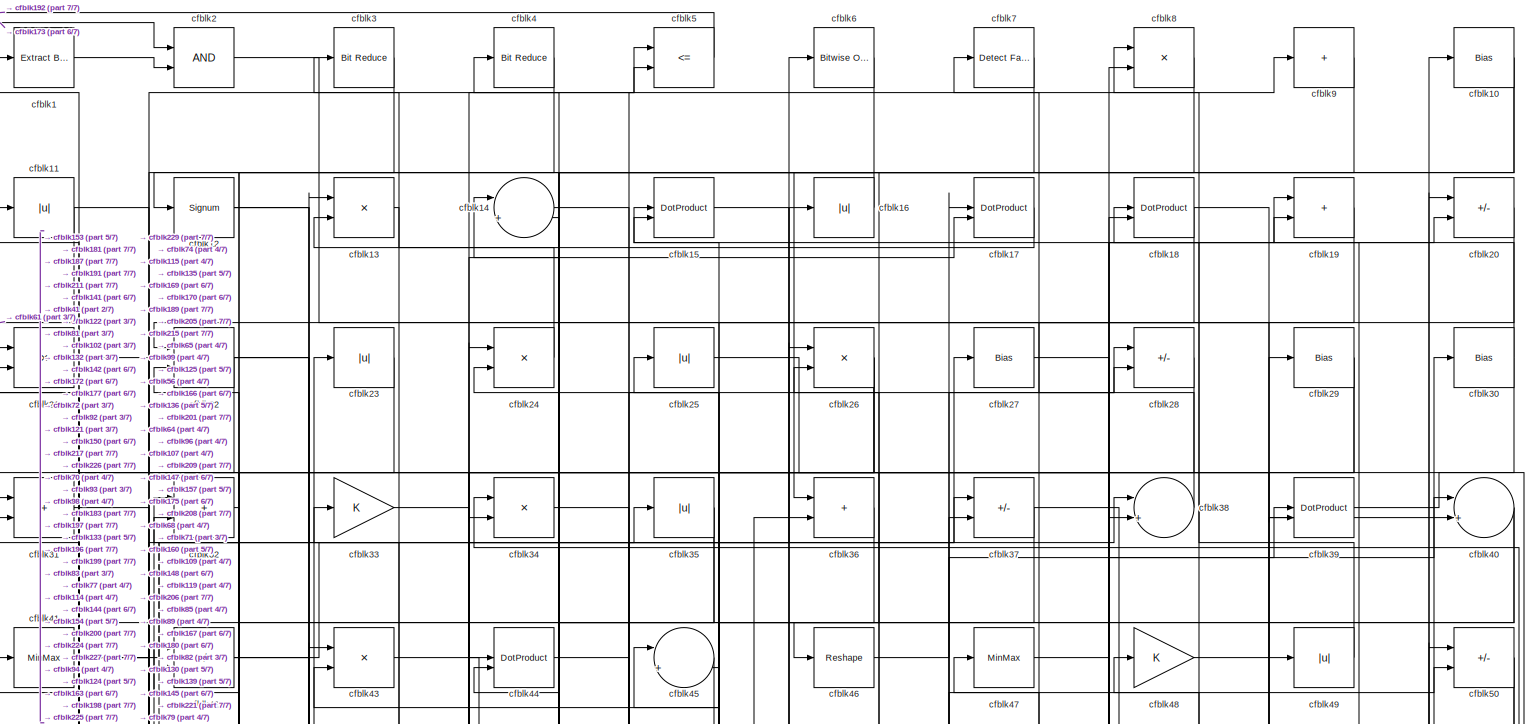
[diagram: root canvas - part 1/7, full width, top band]
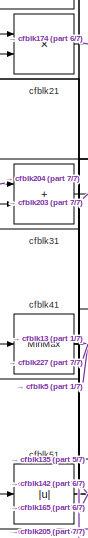
[diagram: root canvas - part 2/7, top left region]
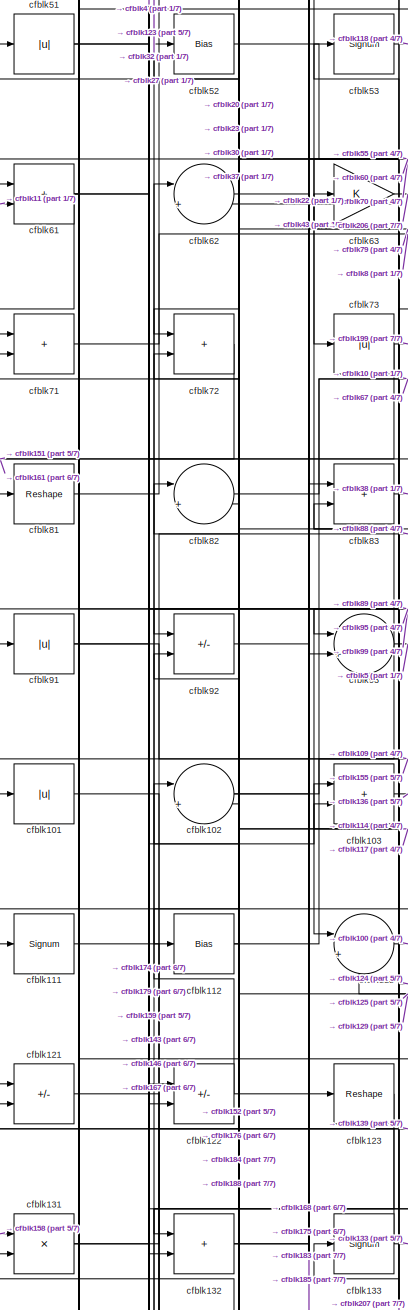
[diagram: root canvas - part 3/7, middle left region]
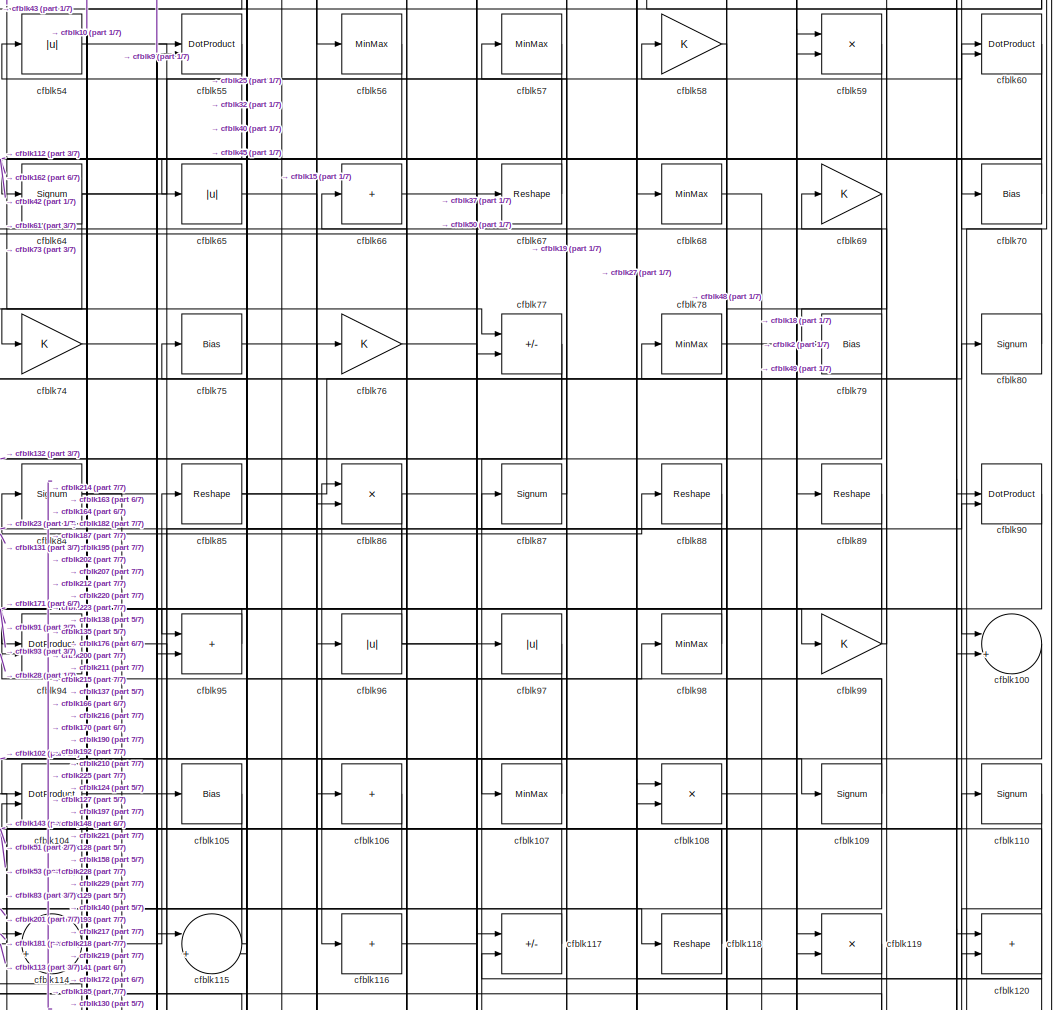
[diagram: root canvas - part 4/7, central region]
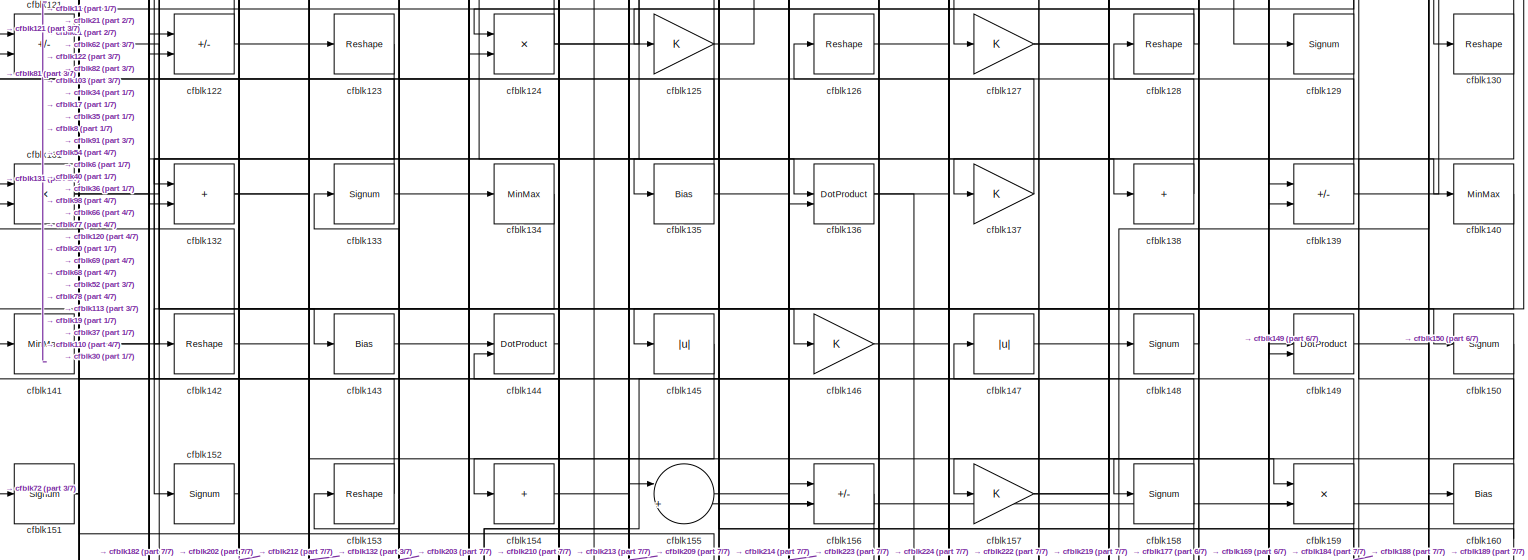
[diagram: root canvas - part 5/7, full width, middle band]
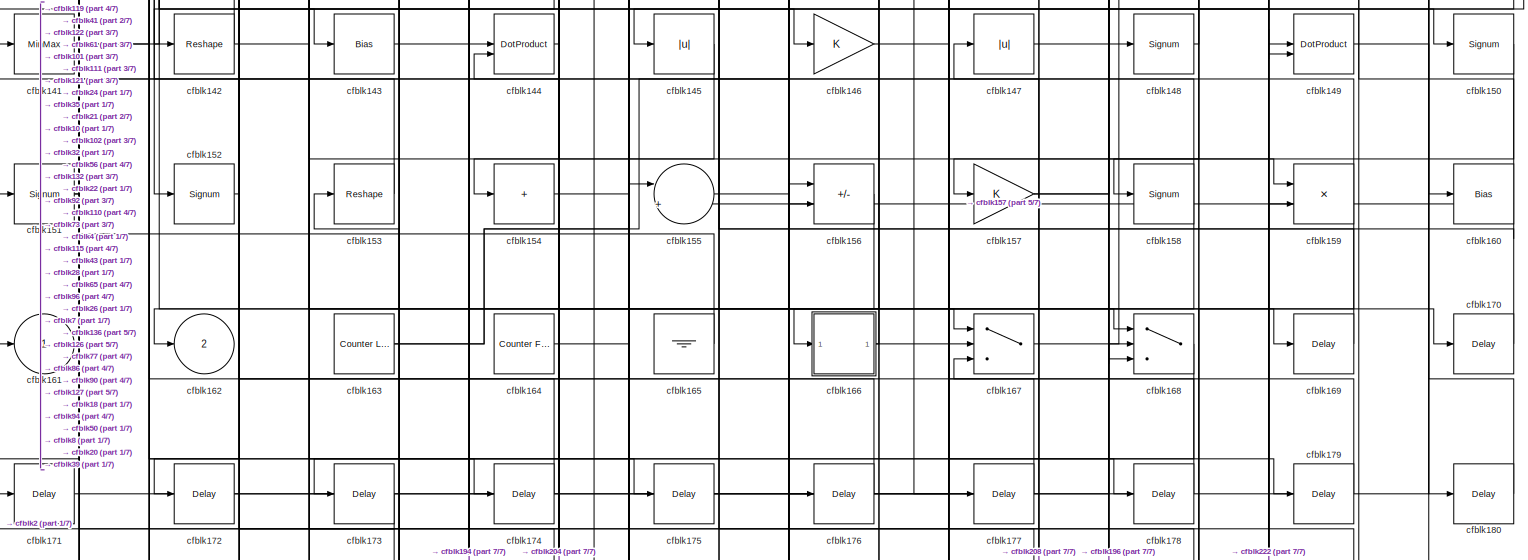
[diagram: root canvas - part 6/7, full width, bottom band]
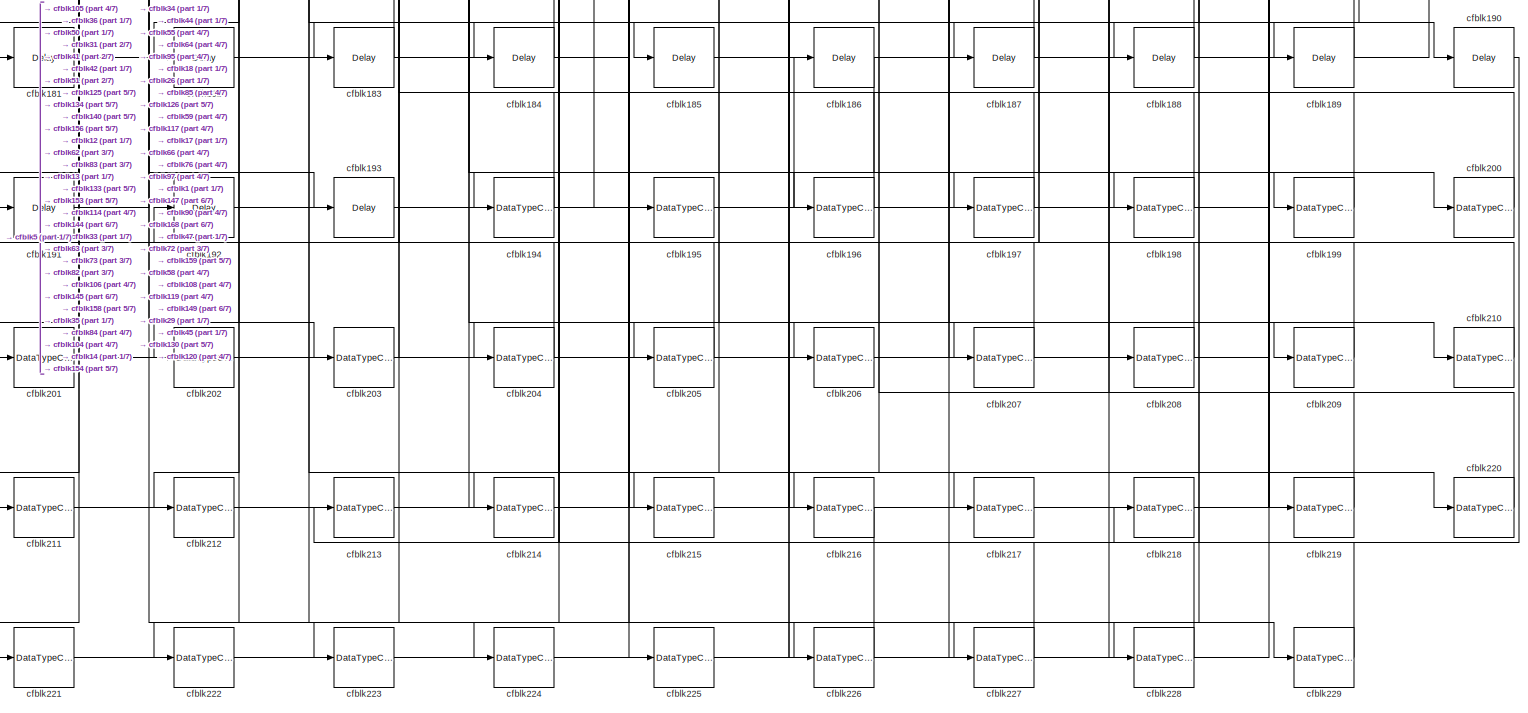
[diagram: root canvas - part 7/7, full width, bottom band]
MODEL slx_8207119f3eb2
KIND model
CONFIG AbsTol = auto
CONFIG EnableMultiTasking = off
CONFIG FixedStep = auto
CONFIG MaxStep = auto
CONFIG MinStep = auto
CONFIG RelTol = 1e-3
CONFIG SampleTimeConstraint = Unconstrained
CONFIG SolverName = VariableStepAuto
CONFIG StartTime = 0.0
CONFIG StopTime = 10.0
BLOCK [Reference] cfblk1  REF=simulink/Logic and Bit
Operations/Extract Bits
  LibrarySourceBlock = hdlsllib/Logic and Bit\nOperations/Extract Bits
  SourceBlock = simulink/Logic and Bit\nOperations/Extract Bits
  SourceType = Extract Bits
BLOCK [Bias] cfblk10
  Bias = 0.0
  SaturateOnIntegerOverflow = off
BLOCK [Sum] cfblk100
  Inputs = |++
BLOCK [Abs] cfblk101
  SaturateOnIntegerOverflow = off
BLOCK [Sum] cfblk102
  Inputs = |++
BLOCK [Sum] cfblk103
  IconShape = rectangular
BLOCK [DotProduct] cfblk104
  OutDataTypeStr = Inherit: Inherit via internal rule
BLOCK [Bias] cfblk105
  Bias = 0.0
  SaturateOnIntegerOverflow = off
BLOCK [Sum] cfblk106
  IconShape = rectangular
  Inputs = +
BLOCK [MinMax] cfblk107
BLOCK [Product] cfblk108
  Inputs = */
  RndMeth = Zero
  SaturateOnIntegerOverflow = on
BLOCK [Signum] cfblk109
BLOCK [Abs] cfblk11
  SaturateOnIntegerOverflow = off
BLOCK [Signum] cfblk110
BLOCK [Signum] cfblk111
BLOCK [Bias] cfblk112
  Bias = 0.0
  SaturateOnIntegerOverflow = off
BLOCK [Sum] cfblk113
  Inputs = |++
BLOCK [Sum] cfblk114
  Inputs = |++
BLOCK [Sum] cfblk115
  Inputs = |++
BLOCK [Sum] cfblk116
  IconShape = rectangular
  Inputs = +
BLOCK [Sum] cfblk117
  IconShape = rectangular
  Inputs = +-
BLOCK [Reshape] cfblk118
BLOCK [Product] cfblk119
  Inputs = */
  RndMeth = Zero
  SaturateOnIntegerOverflow = on
BLOCK [Signum] cfblk12
BLOCK [Sum] cfblk120
  IconShape = rectangular
BLOCK [Sum] cfblk121
  IconShape = rectangular
  Inputs = +-
BLOCK [Sum] cfblk122
  IconShape = rectangular
  Inputs = +-
BLOCK [Reshape] cfblk123
BLOCK [Product] cfblk124
  Inputs = */
  RndMeth = Zero
  SaturateOnIntegerOverflow = on
BLOCK [Gain] cfblk125
BLOCK [Reshape] cfblk126
BLOCK [Gain] cfblk127
BLOCK [Reshape] cfblk128
BLOCK [Signum] cfblk129
BLOCK [Product] cfblk13
  Inputs = */
  RndMeth = Zero
  SaturateOnIntegerOverflow = on
BLOCK [Reshape] cfblk130
BLOCK [Product] cfblk131
  Inputs = */
  RndMeth = Zero
  SaturateOnIntegerOverflow = on
BLOCK [Sum] cfblk132
  IconShape = rectangular
BLOCK [Signum] cfblk133
BLOCK [MinMax] cfblk134
BLOCK [Bias] cfblk135
  Bias = 0.0
  SaturateOnIntegerOverflow = off
BLOCK [DotProduct] cfblk136
  OutDataTypeStr = Inherit: Inherit via internal rule
BLOCK [Gain] cfblk137
BLOCK [Sum] cfblk138
  IconShape = rectangular
  Inputs = +
BLOCK [Sum] cfblk139
  IconShape = rectangular
  Inputs = +-
BLOCK [Sum] cfblk14
  Inputs = |++
BLOCK [MinMax] cfblk140
BLOCK [MinMax] cfblk141
BLOCK [Reshape] cfblk142
BLOCK [Bias] cfblk143
  Bias = 0.0
  SaturateOnIntegerOverflow = off
BLOCK [DotProduct] cfblk144
  OutDataTypeStr = Inherit: Inherit via internal rule
BLOCK [Abs] cfblk145
  SaturateOnIntegerOverflow = off
BLOCK [Gain] cfblk146
BLOCK [Abs] cfblk147
  SaturateOnIntegerOverflow = off
BLOCK [Signum] cfblk148
BLOCK [DotProduct] cfblk149
  OutDataTypeStr = Inherit: Inherit via internal rule
BLOCK [DotProduct] cfblk15
  OutDataTypeStr = Inherit: Inherit via internal rule
BLOCK [Signum] cfblk150
BLOCK [Signum] cfblk151
BLOCK [Signum] cfblk152
BLOCK [Reshape] cfblk153
BLOCK [Sum] cfblk154
  IconShape = rectangular
  Inputs = +
BLOCK [Sum] cfblk155
  Inputs = |++
BLOCK [Sum] cfblk156
  IconShape = rectangular
  Inputs = +-
BLOCK [Gain] cfblk157
BLOCK [Signum] cfblk158
BLOCK [Product] cfblk159
  Inputs = */
  RndMeth = Zero
  SaturateOnIntegerOverflow = on
BLOCK [Abs] cfblk16
  SaturateOnIntegerOverflow = off
BLOCK [Bias] cfblk160
  Bias = 0.0
  SaturateOnIntegerOverflow = off
BLOCK [Outport] cfblk161
  VectorParamsAs1DForOutWhenUnconnected = off
BLOCK [Outport] cfblk162
  Port = 2
  VectorParamsAs1DForOutWhenUnconnected = off
BLOCK [Reference] cfblk163  REF=hdlsllib/Sources/Counter
Limited
  SourceBlock = hdlsllib/Sources/Counter\nLimited
  SourceType = Counter Limited
BLOCK [Reference] cfblk164  REF=hdlsllib/Sources/Counter
Free-Running
  SourceBlock = hdlsllib/Sources/Counter\nFree-Running
  SourceType = Counter Free-Running
BLOCK [Ground] cfblk165
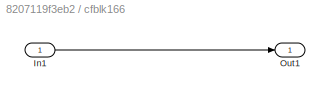
BLOCK [SubSystem] cfblk166
  LibrarySourceBlock = hdlsllib/Ports &\nSubsystems/Subsystem
BLOCK [Inport] cfblk166/In1
BLOCK [Outport] cfblk166/Out1
BLOCK [Switch] cfblk167
  InputSameDT = off
  SaturateOnIntegerOverflow = off
BLOCK [Switch] cfblk168
  InputSameDT = off
  SaturateOnIntegerOverflow = off
BLOCK [Delay] cfblk169
  InputPortMap = u0
  SampleTime = 1
BLOCK [DotProduct] cfblk17
  OutDataTypeStr = Inherit: Inherit via internal rule
BLOCK [Delay] cfblk170
  InputPortMap = u0
  SampleTime = 1
BLOCK [Delay] cfblk171
  InputPortMap = u0
  SampleTime = 1
BLOCK [Delay] cfblk172
  InputPortMap = u0
  SampleTime = 1
BLOCK [Delay] cfblk173
  InputPortMap = u0
  SampleTime = 1
BLOCK [Delay] cfblk174
  InputPortMap = u0
  SampleTime = 1
BLOCK [Delay] cfblk175
  InputPortMap = u0
  SampleTime = 1
BLOCK [Delay] cfblk176
  InputPortMap = u0
  SampleTime = 1
BLOCK [Delay] cfblk177
  InputPortMap = u0
  SampleTime = 1
BLOCK [Delay] cfblk178
  InputPortMap = u0
  SampleTime = 1
BLOCK [Delay] cfblk179
  InputPortMap = u0
  SampleTime = 1
BLOCK [DotProduct] cfblk18
  OutDataTypeStr = Inherit: Inherit via internal rule
BLOCK [Delay] cfblk180
  InputPortMap = u0
  SampleTime = 1
BLOCK [Delay] cfblk181
  InputPortMap = u0
  SampleTime = 1
BLOCK [Delay] cfblk182
  InputPortMap = u0
  SampleTime = 1
BLOCK [Delay] cfblk183
  InputPortMap = u0
  SampleTime = 1
BLOCK [Delay] cfblk184
  InputPortMap = u0
  SampleTime = 1
BLOCK [Delay] cfblk185
  InputPortMap = u0
  SampleTime = 1
BLOCK [Delay] cfblk186
  InputPortMap = u0
  SampleTime = 1
BLOCK [Delay] cfblk187
  InputPortMap = u0
  SampleTime = 1
BLOCK [Delay] cfblk188
  InputPortMap = u0
  SampleTime = 1
BLOCK [Delay] cfblk189
  InputPortMap = u0
  SampleTime = 1
BLOCK [Sum] cfblk19
  IconShape = rectangular
BLOCK [Delay] cfblk190
  InputPortMap = u0
  SampleTime = 1
BLOCK [Delay] cfblk191
  InputPortMap = u0
  SampleTime = 1
BLOCK [Delay] cfblk192
  InputPortMap = u0
  SampleTime = 1
BLOCK [Delay] cfblk193
  InputPortMap = u0
  SampleTime = 1
BLOCK [DataTypeConversion] cfblk194
  OutDataTypeStr = uint8
  RndMeth = Floor
  SaturateOnIntegerOverflow = off
BLOCK [DataTypeConversion] cfblk195
  OutDataTypeStr = uint8
  RndMeth = Floor
  SaturateOnIntegerOverflow = off
BLOCK [DataTypeConversion] cfblk196
  RndMeth = Floor
  SaturateOnIntegerOverflow = off
BLOCK [DataTypeConversion] cfblk197
  OutDataTypeStr = uint8
  RndMeth = Floor
  SaturateOnIntegerOverflow = off
BLOCK [DataTypeConversion] cfblk198
  OutDataTypeStr = uint8
  RndMeth = Floor
  SaturateOnIntegerOverflow = off
BLOCK [DataTypeConversion] cfblk199
  OutDataTypeStr = uint8
  RndMeth = Floor
  SaturateOnIntegerOverflow = off
BLOCK [Logic] cfblk2
  AllPortsSameDT = off
  OutDataTypeStr = boolean
BLOCK [Sum] cfblk20
  IconShape = rectangular
  Inputs = +-
BLOCK [DataTypeConversion] cfblk200
  OutDataTypeStr = uint8
  RndMeth = Floor
  SaturateOnIntegerOverflow = off
BLOCK [DataTypeConversion] cfblk201
  OutDataTypeStr = uint8
  RndMeth = Floor
  SaturateOnIntegerOverflow = off
BLOCK [DataTypeConversion] cfblk202
  OutDataTypeStr = uint8
  RndMeth = Floor
  SaturateOnIntegerOverflow = off
BLOCK [DataTypeConversion] cfblk203
  OutDataTypeStr = uint8
  RndMeth = Floor
  SaturateOnIntegerOverflow = off
BLOCK [DataTypeConversion] cfblk204
  OutDataTypeStr = uint8
  RndMeth = Floor
  SaturateOnIntegerOverflow = off
BLOCK [DataTypeConversion] cfblk205
  OutDataTypeStr = uint8
  RndMeth = Floor
  SaturateOnIntegerOverflow = off
BLOCK [DataTypeConversion] cfblk206
  OutDataTypeStr = uint8
  RndMeth = Floor
  SaturateOnIntegerOverflow = off
BLOCK [DataTypeConversion] cfblk207
  OutDataTypeStr = uint8
  RndMeth = Floor
  SaturateOnIntegerOverflow = off
BLOCK [DataTypeConversion] cfblk208
  OutDataTypeStr = uint8
  RndMeth = Floor
  SaturateOnIntegerOverflow = off
BLOCK [DataTypeConversion] cfblk209
  OutDataTypeStr = uint8
  RndMeth = Floor
  SaturateOnIntegerOverflow = off
BLOCK [Product] cfblk21
  Inputs = */
  RndMeth = Zero
  SaturateOnIntegerOverflow = on
BLOCK [DataTypeConversion] cfblk210
  OutDataTypeStr = uint8
  RndMeth = Floor
  SaturateOnIntegerOverflow = off
BLOCK [DataTypeConversion] cfblk211
  OutDataTypeStr = uint8
  RndMeth = Floor
  SaturateOnIntegerOverflow = off
BLOCK [DataTypeConversion] cfblk212
  OutDataTypeStr = uint8
  RndMeth = Floor
  SaturateOnIntegerOverflow = off
BLOCK [DataTypeConversion] cfblk213
  OutDataTypeStr = uint8
  RndMeth = Floor
  SaturateOnIntegerOverflow = off
BLOCK [DataTypeConversion] cfblk214
  RndMeth = Floor
  SaturateOnIntegerOverflow = off
BLOCK [DataTypeConversion] cfblk215
  OutDataTypeStr = uint8
  RndMeth = Floor
  SaturateOnIntegerOverflow = off
BLOCK [DataTypeConversion] cfblk216
  OutDataTypeStr = uint8
  RndMeth = Floor
  SaturateOnIntegerOverflow = off
BLOCK [DataTypeConversion] cfblk217
  OutDataTypeStr = uint8
  RndMeth = Floor
  SaturateOnIntegerOverflow = off
BLOCK [DataTypeConversion] cfblk218
  OutDataTypeStr = uint8
  RndMeth = Floor
  SaturateOnIntegerOverflow = off
BLOCK [DataTypeConversion] cfblk219
  OutDataTypeStr = uint8
  RndMeth = Floor
  SaturateOnIntegerOverflow = off
BLOCK [Sum] cfblk22
  IconShape = rectangular
BLOCK [DataTypeConversion] cfblk220
  OutDataTypeStr = uint8
  RndMeth = Floor
  SaturateOnIntegerOverflow = off
BLOCK [DataTypeConversion] cfblk221
  OutDataTypeStr = uint8
  RndMeth = Floor
  SaturateOnIntegerOverflow = off
BLOCK [DataTypeConversion] cfblk222
  OutDataTypeStr = uint8
  RndMeth = Floor
  SaturateOnIntegerOverflow = off
BLOCK [DataTypeConversion] cfblk223
  OutDataTypeStr = uint8
  RndMeth = Floor
  SaturateOnIntegerOverflow = off
BLOCK [DataTypeConversion] cfblk224
  OutDataTypeStr = uint8
  RndMeth = Floor
  SaturateOnIntegerOverflow = off
BLOCK [DataTypeConversion] cfblk225
  OutDataTypeStr = uint8
  RndMeth = Floor
  SaturateOnIntegerOverflow = off
BLOCK [DataTypeConversion] cfblk226
  OutDataTypeStr = uint8
  RndMeth = Floor
  SaturateOnIntegerOverflow = off
BLOCK [DataTypeConversion] cfblk227
  OutDataTypeStr = uint8
  RndMeth = Floor
  SaturateOnIntegerOverflow = off
BLOCK [DataTypeConversion] cfblk228
  OutDataTypeStr = uint8
  RndMeth = Floor
  SaturateOnIntegerOverflow = off
BLOCK [DataTypeConversion] cfblk229
  OutDataTypeStr = uint8
  RndMeth = Floor
  SaturateOnIntegerOverflow = off
BLOCK [Abs] cfblk23
  SaturateOnIntegerOverflow = off
BLOCK [Product] cfblk24
  Inputs = */
  RndMeth = Zero
  SaturateOnIntegerOverflow = on
BLOCK [Abs] cfblk25
  SaturateOnIntegerOverflow = off
BLOCK [Product] cfblk26
  Inputs = */
  RndMeth = Zero
  SaturateOnIntegerOverflow = on
BLOCK [Bias] cfblk27
  Bias = 0.0
  SaturateOnIntegerOverflow = off
BLOCK [Sum] cfblk28
  IconShape = rectangular
  Inputs = +-
BLOCK [Bias] cfblk29
  Bias = 0.0
  SaturateOnIntegerOverflow = off
BLOCK [Reference] cfblk3  REF=hdlsllib/Logic and Bit
Operations/Bit Reduce
  SourceBlock = hdlsllib/Logic and Bit\nOperations/Bit Reduce
  SourceType = Bit Reduce
BLOCK [Bias] cfblk30
  Bias = 0.0
  SaturateOnIntegerOverflow = off
BLOCK [Sum] cfblk31
  IconShape = rectangular
BLOCK [Sum] cfblk32
  IconShape = rectangular
BLOCK [Gain] cfblk33
BLOCK [Product] cfblk34
  Inputs = */
  RndMeth = Zero
  SaturateOnIntegerOverflow = on
BLOCK [Abs] cfblk35
  SaturateOnIntegerOverflow = off
BLOCK [Sum] cfblk36
  IconShape = rectangular
BLOCK [Sum] cfblk37
  IconShape = rectangular
  Inputs = +-
BLOCK [Sum] cfblk38
  Inputs = |++
BLOCK [DotProduct] cfblk39
  OutDataTypeStr = Inherit: Inherit via internal rule
BLOCK [Reference] cfblk4  REF=hdlsllib/Logic and Bit
Operations/Bit Reduce
  SourceBlock = hdlsllib/Logic and Bit\nOperations/Bit Reduce
  SourceType = Bit Reduce
BLOCK [Sum] cfblk40
  Inputs = |++
BLOCK [MinMax] cfblk41
BLOCK [Sum] cfblk42
  IconShape = rectangular
  Inputs = +-
BLOCK [Product] cfblk43
  Inputs = */
  RndMeth = Zero
  SaturateOnIntegerOverflow = on
BLOCK [DotProduct] cfblk44
  OutDataTypeStr = Inherit: Inherit via internal rule
BLOCK [Sum] cfblk45
  Inputs = |++
BLOCK [Reshape] cfblk46
BLOCK [MinMax] cfblk47
BLOCK [Gain] cfblk48
BLOCK [Abs] cfblk49
  SaturateOnIntegerOverflow = off
BLOCK [RelationalOperator] cfblk5
  InputSameDT = off
  Operator = <=
  OutDataTypeStr = boolean
BLOCK [Sum] cfblk50
  IconShape = rectangular
  Inputs = +-
BLOCK [Abs] cfblk51
  SaturateOnIntegerOverflow = off
BLOCK [Bias] cfblk52
  Bias = 0.0
  SaturateOnIntegerOverflow = off
BLOCK [Signum] cfblk53
BLOCK [Abs] cfblk54
  SaturateOnIntegerOverflow = off
BLOCK [DotProduct] cfblk55
  OutDataTypeStr = Inherit: Inherit via internal rule
BLOCK [MinMax] cfblk56
BLOCK [MinMax] cfblk57
BLOCK [Gain] cfblk58
BLOCK [Product] cfblk59
  Inputs = */
  RndMeth = Zero
  SaturateOnIntegerOverflow = on
BLOCK [Reference] cfblk6  REF=simulink/Logic and Bit
Operations/Bitwise
Operator
  LibrarySourceBlock = hdlsllib/Logic and Bit\nOperations/Bitwise\nOperator
  SourceBlock = simulink/Logic and Bit\nOperations/Bitwise\nOperator
  SourceType = Bitwise Operator
BLOCK [DotProduct] cfblk60
  OutDataTypeStr = Inherit: Inherit via internal rule
BLOCK [Sum] cfblk61
  IconShape = rectangular
BLOCK [Sum] cfblk62
  Inputs = |++
BLOCK [Gain] cfblk63
BLOCK [Signum] cfblk64
BLOCK [Abs] cfblk65
  SaturateOnIntegerOverflow = off
BLOCK [Sum] cfblk66
  IconShape = rectangular
  Inputs = +
BLOCK [Reshape] cfblk67
BLOCK [MinMax] cfblk68
BLOCK [Gain] cfblk69
BLOCK [Reference] cfblk7  REF=hdlsllib/Logic and Bit
Operations/Detect Fall
Nonpositive
  SourceBlock = hdlsllib/Logic and Bit\nOperations/Detect Fall\nNonpositive
  SourceType = Detect Fall Nonpositive
BLOCK [Bias] cfblk70
  Bias = 0.0
  SaturateOnIntegerOverflow = off
BLOCK [Sum] cfblk71
  IconShape = rectangular
BLOCK [Sum] cfblk72
  IconShape = rectangular
BLOCK [Abs] cfblk73
  SaturateOnIntegerOverflow = off
BLOCK [Gain] cfblk74
BLOCK [Bias] cfblk75
  Bias = 0.0
  SaturateOnIntegerOverflow = off
BLOCK [Gain] cfblk76
BLOCK [Sum] cfblk77
  IconShape = rectangular
  Inputs = +-
BLOCK [MinMax] cfblk78
BLOCK [Bias] cfblk79
  Bias = 0.0
  SaturateOnIntegerOverflow = off
BLOCK [Product] cfblk8
  Inputs = */
  RndMeth = Zero
  SaturateOnIntegerOverflow = on
BLOCK [Signum] cfblk80
BLOCK [Reshape] cfblk81
BLOCK [Sum] cfblk82
  Inputs = |++
BLOCK [Sum] cfblk83
  IconShape = rectangular
BLOCK [Signum] cfblk84
BLOCK [Reshape] cfblk85
BLOCK [Product] cfblk86
  Inputs = */
  RndMeth = Zero
  SaturateOnIntegerOverflow = on
BLOCK [Signum] cfblk87
BLOCK [Reshape] cfblk88
BLOCK [Reshape] cfblk89
BLOCK [Sum] cfblk9
  IconShape = rectangular
  Inputs = +
BLOCK [DotProduct] cfblk90
  OutDataTypeStr = Inherit: Inherit via internal rule
BLOCK [Abs] cfblk91
  SaturateOnIntegerOverflow = off
BLOCK [Sum] cfblk92
  IconShape = rectangular
  Inputs = +-
BLOCK [Sum] cfblk93
  Inputs = |++
BLOCK [DotProduct] cfblk94
  OutDataTypeStr = Inherit: Inherit via internal rule
BLOCK [Sum] cfblk95
  IconShape = rectangular
BLOCK [Abs] cfblk96
  SaturateOnIntegerOverflow = off
BLOCK [Abs] cfblk97
  SaturateOnIntegerOverflow = off
BLOCK [MinMax] cfblk98
BLOCK [Gain] cfblk99
LINE cfblk100:1 -> cfblk116:1
LINE cfblk101:1 -> cfblk167:1
NET cfblk102:1 -> cfblk109:1, cfblk43:1
LINE cfblk103:1 -> cfblk136:1
LINE cfblk104:1 -> cfblk220:1
LINE cfblk105:1 -> cfblk201:1
LINE cfblk106:1 -> cfblk214:1
LINE cfblk107:1 -> cfblk84:1
LINE cfblk108:1 -> cfblk219:1
NET cfblk109:1 -> cfblk115:2, cfblk15:2, cfblk48:1
NET cfblk10:1 -> cfblk114:2, cfblk142:1
LINE cfblk110:1 -> cfblk130:1
LINE cfblk111:1 -> cfblk146:1
NET cfblk112:1 -> cfblk67:1, cfblk92:2
LINE cfblk113:1 -> cfblk100:2
NET cfblk114:1 -> cfblk53:1, cfblk85:1
NET cfblk115:1 -> cfblk25:1, cfblk32:2
LINE cfblk116:1 -> cfblk80:1
LINE cfblk117:1 -> cfblk83:2
NET cfblk118:1 -> cfblk51:1, cfblk87:1
LINE cfblk119:1 -> cfblk141:1
NET cfblk11:1 -> cfblk39:2, cfblk61:2
NET cfblk120:1 -> cfblk117:2, cfblk86:1
LINE cfblk121:1 -> cfblk143:1
NET cfblk122:1 -> cfblk123:1, cfblk32:1
LINE cfblk123:1 -> cfblk152:1
NET cfblk124:1 -> cfblk37:1, cfblk62:2, cfblk6:1
NET cfblk125:1 -> cfblk182:1, cfblk36:2, cfblk52:1
LINE cfblk126:1 -> cfblk149:2
NET cfblk127:1 -> cfblk120:2, cfblk169:1
NET cfblk128:1 -> cfblk125:1, cfblk78:1
NET cfblk129:1 -> cfblk113:2, cfblk137:1
NET cfblk12:1 -> cfblk217:1, cfblk226:1
NET cfblk130:1 -> cfblk189:1, cfblk30:1
NET cfblk131:1 -> cfblk103:1, cfblk88:1
NET cfblk132:1 -> cfblk159:1, cfblk168:3
NET cfblk133:1 -> cfblk17:2, cfblk81:1
LINE cfblk134:1 -> cfblk212:1
NET cfblk135:1 -> cfblk21:1, cfblk98:1
NET cfblk136:1 -> cfblk177:1, cfblk40:1
LINE cfblk137:1 -> cfblk66:1
LINE cfblk138:1 -> cfblk128:1
NET cfblk139:1 -> cfblk103:2, cfblk34:1
LINE cfblk13:1 -> cfblk183:1
LINE cfblk140:1 -> cfblk202:1
NET cfblk141:1 -> cfblk24:1, cfblk35:1
NET cfblk142:1 -> cfblk168:1, cfblk21:2
LINE cfblk143:1 -> cfblk110:1
LINE cfblk144:1 -> cfblk4:1
LINE cfblk145:1 -> cfblk204:1
LINE cfblk146:1 -> cfblk178:1
LINE cfblk147:1 -> cfblk39:1
LINE cfblk148:1 -> cfblk8:1
LINE cfblk149:1 -> cfblk180:1
LINE cfblk14:1 -> cfblk225:1
LINE cfblk150:1 -> cfblk157:1
NET cfblk151:1 -> cfblk121:1, cfblk131:2
LINE cfblk152:1 -> cfblk82:1
LINE cfblk153:1 -> cfblk11:1
LINE cfblk154:1 -> cfblk209:1
LINE cfblk155:1 -> cfblk136:2
LINE cfblk156:1 -> cfblk222:1
NET cfblk157:1 -> cfblk19:2, cfblk20:2
NET cfblk158:1 -> cfblk131:1, cfblk184:1
NET cfblk159:1 -> cfblk188:1, cfblk62:1
LINE cfblk15:1 -> cfblk56:1
NET cfblk160:1 -> cfblk155:2, cfblk19:1
NET cfblk163:1 -> cfblk28:2, cfblk96:1
LINE cfblk164:1 -> cfblk115:1
LINE cfblk165:1 -> cfblk41:1
LINE cfblk166/In1:1 -> cfblk166/Out1:1
NET cfblk166:1 -> cfblk26:2, cfblk90:2
LINE cfblk167:1 -> cfblk50:1
LINE cfblk168:1 -> cfblk173:1
LINE cfblk169:1 -> cfblk43:2
LINE cfblk16:1 -> cfblk12:1
LINE cfblk170:1 -> cfblk24:2
LINE cfblk171:1 -> cfblk77:2
LINE cfblk172:1 -> cfblk90:1
LINE cfblk173:1 -> cfblk2:1
LINE cfblk174:1 -> cfblk122:1
LINE cfblk175:1 -> cfblk18:2
LINE cfblk176:1 -> cfblk102:1
LINE cfblk177:1 -> cfblk22:2
LINE cfblk178:1 -> cfblk167:2
LINE cfblk179:1 -> cfblk167:3
LINE cfblk17:1 -> cfblk13:2
LINE cfblk180:1 -> cfblk20:1
LINE cfblk181:1 -> cfblk114:1
LINE cfblk182:1 -> cfblk95:2
LINE cfblk183:1 -> cfblk83:1
LINE cfblk184:1 -> cfblk82:2
LINE cfblk185:1 -> cfblk120:1
LINE cfblk186:1 -> cfblk194:1
LINE cfblk187:1 -> cfblk1:1
LINE cfblk188:1 -> cfblk72:2
LINE cfblk189:1 -> cfblk45:1
NET cfblk18:1 -> cfblk215:1, cfblk89:1
LINE cfblk190:1 -> cfblk218:1
LINE cfblk191:1 -> cfblk42:2
LINE cfblk192:1 -> cfblk117:1
LINE cfblk193:1 -> cfblk119:2
LINE cfblk194:1 -> cfblk144:1
LINE cfblk195:1 -> cfblk186:1
NET cfblk196:1 -> cfblk144:2, cfblk168:2
LINE cfblk197:1 -> cfblk33:1
LINE cfblk198:1 -> cfblk26:1
LINE cfblk199:1 -> cfblk44:1
LINE cfblk19:1 -> cfblk107:1
LINE cfblk1:1 -> cfblk2:2
LINE cfblk200:1 -> cfblk44:2
LINE cfblk201:1 -> cfblk17:1
LINE cfblk202:1 -> cfblk105:1
LINE cfblk203:1 -> cfblk133:1
LINE cfblk204:1 -> cfblk31:1
LINE cfblk205:1 -> cfblk31:2
LINE cfblk206:1 -> cfblk29:1
LINE cfblk207:1 -> cfblk63:1
LINE cfblk208:1 -> cfblk147:1
LINE cfblk209:1 -> cfblk47:1
LINE cfblk20:1 -> cfblk102:2
LINE cfblk210:1 -> cfblk153:1
LINE cfblk211:1 -> cfblk76:1
LINE cfblk212:1 -> cfblk55:1
LINE cfblk213:1 -> cfblk134:1
NET cfblk214:1 -> cfblk159:2, cfblk55:2
LINE cfblk215:1 -> cfblk106:1
LINE cfblk216:1 -> cfblk213:1
LINE cfblk217:1 -> cfblk59:1
LINE cfblk218:1 -> cfblk59:2
LINE cfblk219:1 -> cfblk126:1
LINE cfblk21:1 -> cfblk174:1
LINE cfblk220:1 -> cfblk108:1
LINE cfblk221:1 -> cfblk108:2
LINE cfblk222:1 -> cfblk149:1
LINE cfblk223:1 -> cfblk156:1
LINE cfblk224:1 -> cfblk156:2
LINE cfblk225:1 -> cfblk97:1
LINE cfblk226:1 -> cfblk14:1
LINE cfblk227:1 -> cfblk14:2
LINE cfblk228:1 -> cfblk104:2
LINE cfblk229:1 -> cfblk58:1
NET cfblk22:1 -> cfblk121:2, cfblk150:1, cfblk93:2
LINE cfblk23:1 -> cfblk92:1
LINE cfblk24:1 -> cfblk3:1
LINE cfblk25:1 -> cfblk38:2
NET cfblk26:1 -> cfblk191:1, cfblk205:1, cfblk211:1
LINE cfblk27:1 -> cfblk68:1
LINE cfblk28:1 -> cfblk94:2
NET cfblk29:1 -> cfblk34:2, cfblk46:1
LINE cfblk2:1 -> cfblk119:1
NET cfblk30:1 -> cfblk132:1, cfblk15:1
LINE cfblk31:1 -> cfblk203:1
LINE cfblk32:1 -> cfblk172:1
LINE cfblk33:1 -> cfblk196:1
LINE cfblk34:1 -> cfblk229:1
NET cfblk35:1 -> cfblk154:1, cfblk224:1
LINE cfblk36:1 -> cfblk181:1
NET cfblk37:1 -> cfblk160:1, cfblk72:1
LINE cfblk38:1 -> cfblk7:1
LINE cfblk39:1 -> cfblk145:1
LINE cfblk3:1 -> cfblk22:1
NET cfblk40:1 -> cfblk135:1, cfblk65:1
NET cfblk41:1 -> cfblk13:1, cfblk227:1, cfblk5:2
NET cfblk42:1 -> cfblk16:1, cfblk70:1
LINE cfblk43:1 -> cfblk77:1
LINE cfblk44:1 -> cfblk198:1
LINE cfblk45:1 -> cfblk74:1
LINE cfblk46:1 -> cfblk28:1
LINE cfblk47:1 -> cfblk208:1
LINE cfblk48:1 -> cfblk40:2
LINE cfblk49:1 -> cfblk18:1
LINE cfblk4:1 -> cfblk122:2
NET cfblk50:1 -> cfblk221:1, cfblk79:1
NET cfblk51:1 -> cfblk139:2, cfblk193:1
LINE cfblk52:1 -> cfblk139:1
LINE cfblk53:1 -> cfblk118:1
LINE cfblk54:1 -> cfblk138:1
LINE cfblk55:1 -> cfblk73:1
LINE cfblk56:1 -> cfblk162:1
LINE cfblk57:1 -> cfblk64:1
LINE cfblk58:1 -> cfblk228:1
LINE cfblk59:1 -> cfblk216:1
LINE cfblk5:1 -> cfblk192:1
NET cfblk60:1 -> cfblk112:1, cfblk86:2
NET cfblk61:1 -> cfblk111:1, cfblk179:1, cfblk71:2, cfblk99:1
LINE cfblk62:1 -> cfblk185:1
LINE cfblk63:1 -> cfblk206:1
NET cfblk64:1 -> cfblk207:1, cfblk223:1, cfblk37:2
LINE cfblk65:1 -> cfblk176:1
LINE cfblk66:1 -> cfblk190:1
LINE cfblk67:1 -> cfblk54:1
LINE cfblk68:1 -> cfblk129:1
LINE cfblk69:1 -> cfblk158:1
LINE cfblk6:1 -> cfblk36:1
LINE cfblk70:1 -> cfblk61:1
LINE cfblk71:1 -> cfblk8:2
LINE cfblk72:1 -> cfblk151:1
NET cfblk73:1 -> cfblk161:1, cfblk199:1
LINE cfblk74:1 -> cfblk9:1
LINE cfblk75:1 -> cfblk100:1
LINE cfblk76:1 -> cfblk210:1
NET cfblk77:1 -> cfblk124:2, cfblk127:1
LINE cfblk78:1 -> cfblk140:1
NET cfblk79:1 -> cfblk132:2, cfblk42:1
LINE cfblk7:1 -> cfblk166:1
LINE cfblk80:1 -> cfblk60:1
LINE cfblk81:1 -> cfblk27:1
LINE cfblk82:1 -> cfblk10:1
LINE cfblk83:1 -> cfblk38:1
NET cfblk84:1 -> cfblk187:1, cfblk195:1
NET cfblk85:1 -> cfblk200:1, cfblk49:1
NET cfblk86:1 -> cfblk170:1, cfblk171:1
LINE cfblk87:1 -> cfblk57:1
LINE cfblk88:1 -> cfblk113:1
LINE cfblk89:1 -> cfblk91:1
LINE cfblk8:1 -> cfblk124:1
LINE cfblk90:1 -> cfblk197:1
NET cfblk91:1 -> cfblk155:1, cfblk95:1
LINE cfblk92:1 -> cfblk175:1
NET cfblk93:1 -> cfblk101:1, cfblk5:1, cfblk71:1
LINE cfblk94:1 -> cfblk148:1
LINE cfblk95:1 -> cfblk93:1
NET cfblk96:1 -> cfblk50:2, cfblk60:2, cfblk75:1
LINE cfblk97:1 -> cfblk104:1
LINE cfblk98:1 -> cfblk23:1
NET cfblk99:1 -> cfblk45:2, cfblk69:1
LINE cfblk9:1 -> cfblk94:1
note: NET lines group one-source signal fan-out (src -> all destinations, sorted); 1:1 wires keep LINE
